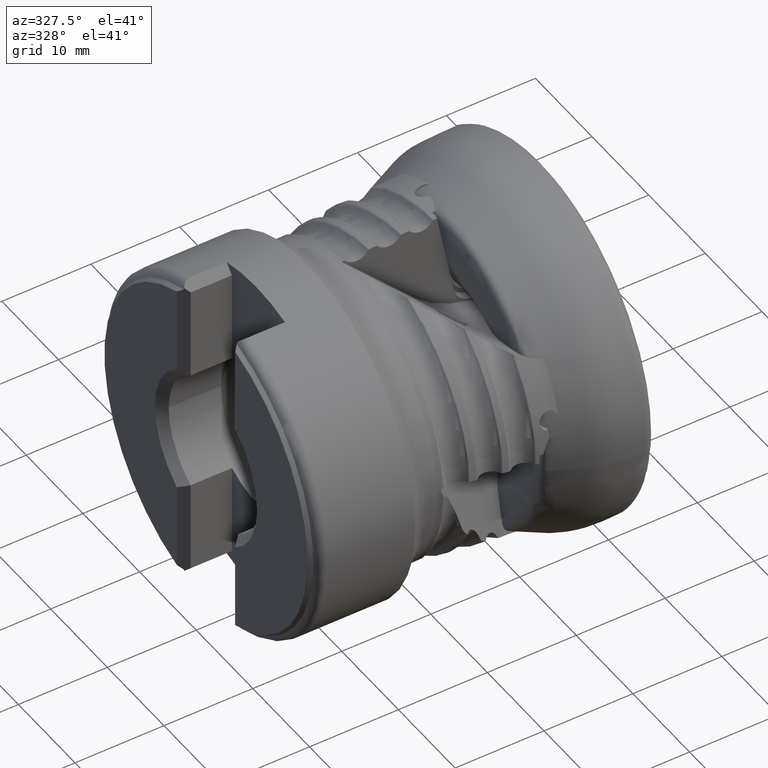
[diagram: clean part render]
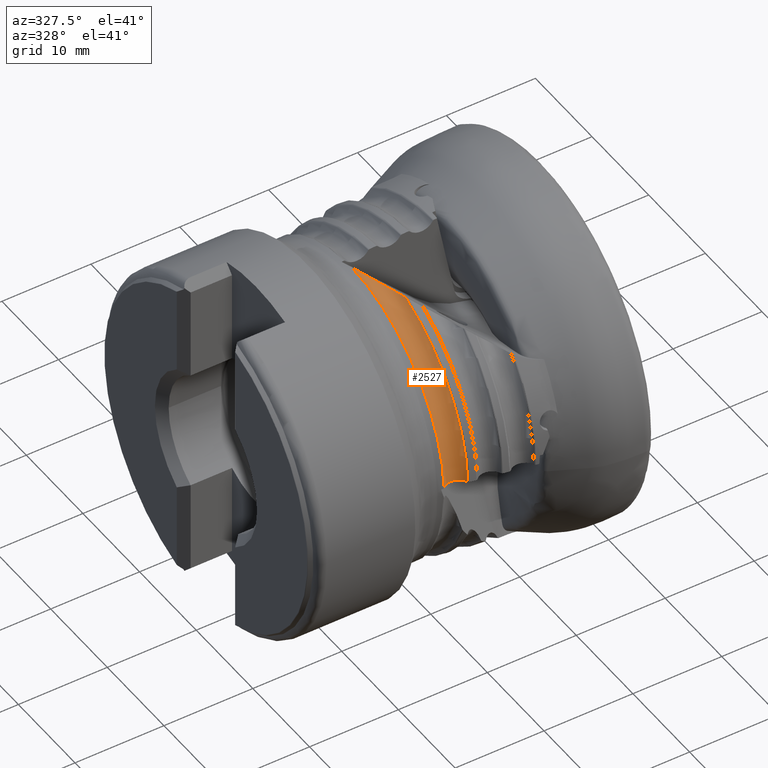
[diagram: same view with one face highlighted and labeled with its STEP entity id]
A machine part, auxiliary view. The second image highlights one B-rep face of the part: STEP entity #2527.
In plain terms, the highlighted toroidal blend (fillet) surface has major radius 17.6057 mm and minor (blend) radius 1.5 mm.
Its self-contained STEP definition (entity closure, byte-faithful):
#259 = CARTESIAN_POINT ( 'NONE',  ( -20.33009416084708600, -16.67864336951823400, 0.7199093425222522500 ) ) ;
#459 = ORIENTED_EDGE ( 'NONE', *, *, #4389, .T. ) ;
#781 = CARTESIAN_POINT ( 'NONE',  ( -22.32383137129796300, -0.4472154193626955400, 16.31246231591467600 ) ) ;
#802 = CARTESIAN_POINT ( 'NONE',  ( -22.68822593246435600, 0.0000000000000000000, 0.0000000000000000000 ) ) ;
#861 = EDGE_CURVE ( 'NONE', #8339, #8967, #2339, .T. ) ;
#941 = CARTESIAN_POINT ( 'NONE',  ( -22.68822593246434100, -16.60915098782870600, 0.8848059794541165400 ) ) ;
#978 = CIRCLE ( 'NONE', #4006, 16.63270207025210100 ) ;
#1017 = CARTESIAN_POINT ( 'NONE',  ( -22.31926516582968700, -16.29158156033856700, 0.8590057293111281700 ) ) ;
#1494 = DIRECTION ( 'NONE',  ( -1.000000000000000000, 0.0000000000000000000, 0.0000000000000000000 ) ) ;
#1574 = CARTESIAN_POINT ( 'NONE',  ( -22.50073761925962000, -0.2909793426505551900, 16.44390322795650800 ) ) ;
#1604 = DIRECTION ( 'NONE',  ( 0.0000000000000000000, 0.0000000000000000000, -1.000000000000000000 ) ) ;
#1639 = EDGE_LOOP ( 'NONE', ( #459, #2278, #8676, #7515 ) ) ;
#1801 = CARTESIAN_POINT ( 'NONE',  ( -21.98321970420074200, -16.14388558668465000, 0.8355071415113352100 ) ) ;
#2278 = ORIENTED_EDGE ( 'NONE', *, *, #861, .T. ) ;
#2326 = CARTESIAN_POINT ( 'NONE',  ( -20.81671503638117200, -3.842691412792472500, 15.82669143939775400 ) ) ;
#2339 = B_SPLINE_CURVE_WITH_KNOTS ( 'NONE', 3,
 ( #8582, #4659, #7001, #2326, #7810, #3116, #8617, #3906, #9430, #4693, #10241, #5477, #781, #6269, #1574, #7034, #2358, #7846 ),
 .UNSPECIFIED., .F., .F.,
 ( 4, 2, 2, 2, 2, 2, 2, 2, 4 ),
 ( 9.195292414333677100E-007, 0.001608699654080831500, 0.003216479778920229900, 0.004020369841339929300, 0.004824259903759628800, 0.005628149966179329900, 0.006030094997389179700, 0.006231067512994104500, 0.006432040028599030200 ),
 .UNSPECIFIED. ) ;
#2358 = CARTESIAN_POINT ( 'NONE',  ( -22.64598034273079500, -0.2581762452934182100, 16.58113764798614300 ) ) ;
#2527 = ADVANCED_FACE ( 'NONE', ( #4630 ), #2542, .F. ) ;
#2542 = TOROIDAL_SURFACE ( 'NONE', #4341, 17.60569821854205200, 1.500000000000000900 ) ;
#2590 = CARTESIAN_POINT ( 'NONE',  ( -21.62066439760929300, -16.08215080198397100, 0.8101548047681995700 ) ) ;
#3116 = CARTESIAN_POINT ( 'NONE',  ( -21.28693278193042800, -2.587329545330078400, 15.91806416404013500 ) ) ;
#3126 = CARTESIAN_POINT ( 'NONE',  ( -21.54661369732801600, 0.0000000000000000000, 0.0000000000000000000 ) ) ;
#3368 = CARTESIAN_POINT ( 'NONE',  ( -21.25529285941197700, -16.11006186231635700, 0.7846055379271689200 ) ) ;
#3743 = CIRCLE ( 'NONE', #3973, 16.91288963051713500 ) ;
#3906 = CARTESIAN_POINT ( 'NONE',  ( -21.59133500523410700, -1.844790386164231400, 15.99875544850700800 ) ) ;
#3918 = DIRECTION ( 'NONE',  ( 0.0000000000000000000, 0.0000000000000000000, -1.000000000000000000 ) ) ;
#3973 = AXIS2_PLACEMENT_3D ( 'NONE', #6182, #1494, #6957 ) ;
#4006 = AXIS2_PLACEMENT_3D ( 'NONE', #802, #6293, #1604 ) ;
#4171 = CARTESIAN_POINT ( 'NONE',  ( -20.90806824766631800, -16.22516396195757700, 0.7603252277994762000 ) ) ;
#4341 = AXIS2_PLACEMENT_3D ( 'NONE', #3126, #7016, #3918 ) ;
#4389 = EDGE_CURVE ( 'NONE', #8558, #8339, #3743, .T. ) ;
#4630 = FACE_OUTER_BOUND ( 'NONE', #1639, .T. ) ;
#4659 = CARTESIAN_POINT ( 'NONE',  ( -20.33278144251092800, -5.375785374605970700, 15.80670183599267500 ) ) ;
#4677 = CARTESIAN_POINT ( 'NONE',  ( -22.68822593246432700, -0.2789463830315295200, 16.63036280642013400 ) ) ;
#4693 = CARTESIAN_POINT ( 'NONE',  ( -21.92320798078881300, -1.118440933086554100, 16.11228021519579900 ) ) ;
#4913 = CARTESIAN_POINT ( 'NONE',  ( -22.68822593246434100, -16.60915098782870600, 0.8848059794541165400 ) ) ;
#4944 = CARTESIAN_POINT ( 'NONE',  ( -20.49704341607591800, -16.49061774927225700, 0.7315835716967461500 ) ) ;
#5351 = B_SPLINE_CURVE_WITH_KNOTS ( 'NONE', 3,
 ( #4913, #9663, #5713, #1017, #6487, #1801, #7276, #2590, #8069, #3368, #8873, #4171, #9693, #4944, #259, #5746 ),
 .UNSPECIFIED., .F., .F.,
 ( 4, 2, 2, 2, 2, 2, 2, 4 ),
 ( 3.039863656247275200E-007, 0.0003658802608646801300, 0.0007314565353637355600, 0.001097032809862790900, 0.001462609084361846400, 0.001828185358860901900, 0.002193761633359957200, 0.002924914182358076400 ),
 .UNSPECIFIED. ) ;
#5405 = CARTESIAN_POINT ( 'NONE',  ( -20.21619411676004300, -5.901432663571136500, 15.84988732361804500 ) ) ;
#5477 = CARTESIAN_POINT ( 'NONE',  ( -22.24942148686618300, -0.5524953852648107900, 16.26932651535734600 ) ) ;
#5713 = CARTESIAN_POINT ( 'NONE',  ( -22.51808038382776500, -16.43310511388428500, 0.8729082436715848200 ) ) ;
#5746 = CARTESIAN_POINT ( 'NONE',  ( -20.21619411675994700, -16.89789840284870700, 0.7119446755590139700 ) ) ;
#6182 = CARTESIAN_POINT ( 'NONE',  ( -20.21619411675996500, 0.0000000000000000000, 0.0000000000000000000 ) ) ;
#6269 = CARTESIAN_POINT ( 'NONE',  ( -22.45390610071135700, -0.3250163835080736000, 16.40685869714480900 ) ) ;
#6293 = DIRECTION ( 'NONE',  ( 1.000000000000000000, -0.0000000000000000000, -0.0000000000000000000 ) ) ;
#6487 = CARTESIAN_POINT ( 'NONE',  ( -22.20976862421986200, -16.23244539084076300, 0.8513489852375146800 ) ) ;
#6957 = DIRECTION ( 'NONE',  ( 0.0000000000000000000, 0.0000000000000000000, 1.000000000000000000 ) ) ;
#7001 = CARTESIAN_POINT ( 'NONE',  ( -20.48461413074465700, -4.861656433169802200, 15.80280040446530700 ) ) ;
#7016 = DIRECTION ( 'NONE',  ( 1.000000000000000000, -0.0000000000000000000, -0.0000000000000000000 ) ) ;
#7034 = CARTESIAN_POINT ( 'NONE',  ( -22.59680974542196100, -0.2564974197073214800, 16.53075210144079000 ) ) ;
#7064 = CARTESIAN_POINT ( 'NONE',  ( -20.21619411675994700, -16.89789840284870700, 0.7119446755590139700 ) ) ;
#7276 = CARTESIAN_POINT ( 'NONE',  ( -21.86321535402776600, -16.11318504069943100, 0.8271156198843886400 ) ) ;
#7515 = ORIENTED_EDGE ( 'NONE', *, *, #8120, .T. ) ;
#7810 = CARTESIAN_POINT ( 'NONE',  ( -20.99822129950287300, -3.337849092539434200, 15.85573764386980700 ) ) ;
#7846 = CARTESIAN_POINT ( 'NONE',  ( -22.68822593246432700, -0.2789463830315295200, 16.63036280642013400 ) ) ;
#8069 = CARTESIAN_POINT ( 'NONE',  ( -21.49908096638373000, -16.08147471128156500, 0.8016528630374438700 ) ) ;
#8120 = EDGE_CURVE ( 'NONE', #8471, #8558, #5351, .T. ) ;
#8339 = VERTEX_POINT ( 'NONE', #5405 ) ;
#8471 = VERTEX_POINT ( 'NONE', #941 ) ;
#8552 = EDGE_CURVE ( 'NONE', #8967, #8471, #978, .T. ) ;
#8558 = VERTEX_POINT ( 'NONE', #7064 ) ;
#8582 = CARTESIAN_POINT ( 'NONE',  ( -20.21619411676004300, -5.901432663571136500, 15.84988732361804500 ) ) ;
#8617 = CARTESIAN_POINT ( 'NONE',  ( -21.38595142352444600, -2.338571037745303300, 15.94209517280852100 ) ) ;
#8676 = ORIENTED_EDGE ( 'NONE', *, *, #8552, .T. ) ;
#8873 = CARTESIAN_POINT ( 'NONE',  ( -21.13585434539892600, -16.13926788031873000, 0.7762535834189682200 ) ) ;
#8967 = VERTEX_POINT ( 'NONE', #4677 ) ;
#9430 = CARTESIAN_POINT ( 'NONE',  ( -21.69742728278197700, -1.599777618206830600, 16.03111105418322400 ) ) ;
#9663 = CARTESIAN_POINT ( 'NONE',  ( -22.60804384319510500, -16.51523897714228200, 0.8791991015765499000 ) ) ;
#9693 = CARTESIAN_POINT ( 'NONE',  ( -20.79769682854096800, -16.28298118219596100, 0.7526073063303606600 ) ) ;
#10241 = CARTESIAN_POINT ( 'NONE',  ( -22.04149376798341100, -0.8799915382340929300, 16.15901843369589500 ) ) ;